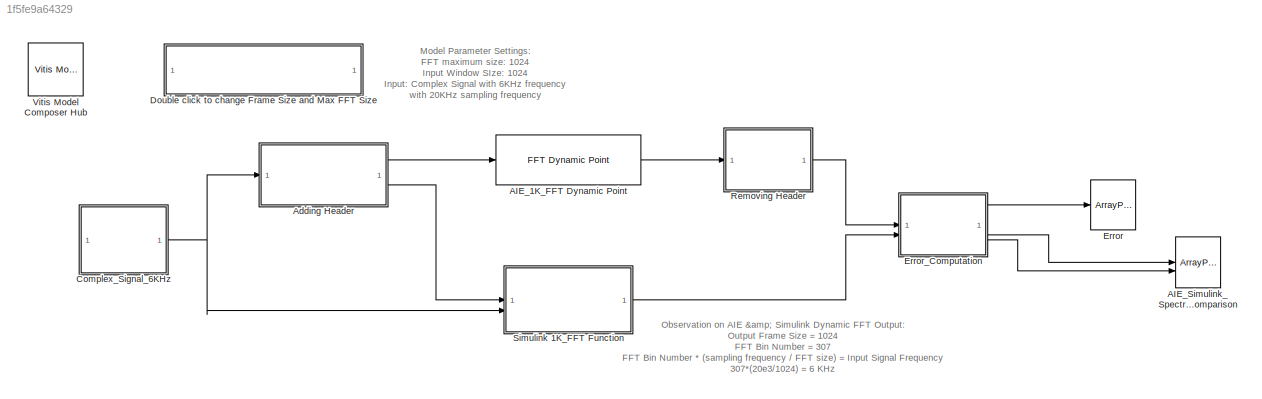
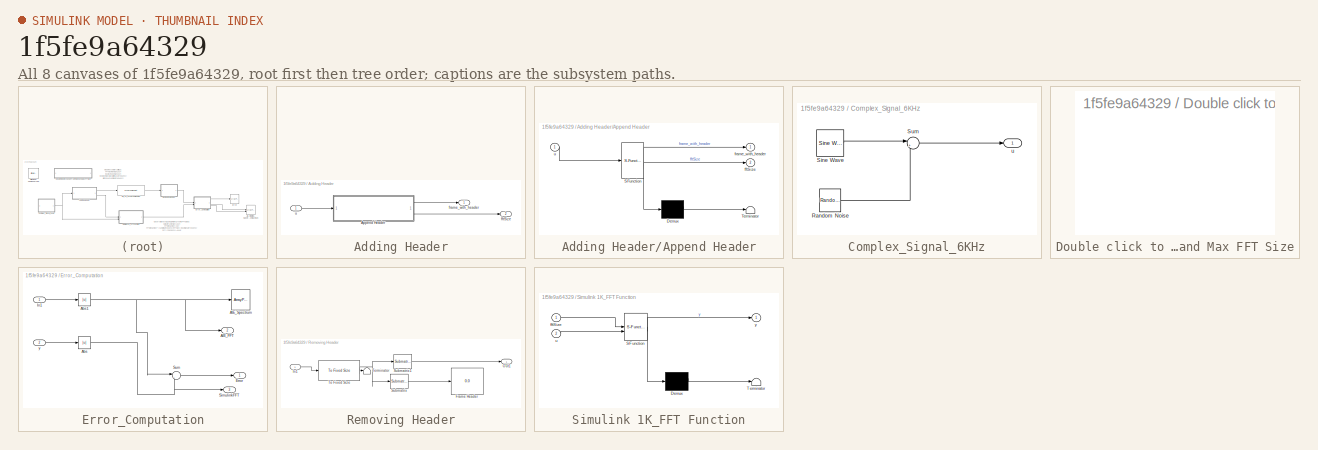
[diagram: thumbnail index - all 8 canvases of the model, root first then tree order]
MODEL slx_1f5fe9a64329
KIND model
CONFIG AbsTol = auto
CONFIG EnableMultiTasking = off
CONFIG FixedStep = auto
CONFIG MaxStep = auto
CONFIG MinStep = auto
CONFIG RelTol = 1e-3
CONFIG SampleTimeConstraint = Unconstrained
CONFIG SolverName = VariableStepAuto
CONFIG StartTime = 0.0
CONFIG StopTime = 2
WORKSPACE source: mxarray member
WORKSPACE frame_size = 1024
WORKSPACE max_fft_size = 1024
BLOCK [Reference] AIE_1K_FFT Dynamic Point  REF=aieDSP/FFT Dynamic Point
  SourceBlock = aieDSP/FFT Dynamic Point
  SourceType = FFT Dynamic Point
BLOCK [ArrayPlot] AIE_Simulink_SpectrumComparison
  AxesScaling = Manual
  GraphicalSettings = {"Style":{"BackgroundColor":[0.15686274509803921,0.15686274509803921,0.15686274509803921],"AxesColor":[0,0,0],"LabelsColor":[0.68627450980392157,0.68627450980392157,0.68627450980392157],"LineStyle":["-","-"],"LineColor":[[1,1,0.066666666666666666],[0.074509803921568626,0.62352941176470589,1]],"LineWidth":[1.5,1.5],"Marker":[".","o"],"FontSize":"small"},"Cursors":{"Enabled":false,"XLocation":[2,8],...<+384ch>
  NumInputPorts = 2
  PlotType = Line
  ShowLegend = on
  WasSavedAsWebScope = on
  WindowPosition = [83.000000,185.000000,845.000000,423.000000,]
  YLimits = [-100,1100]
BLOCK [SubSystem] Adding Header
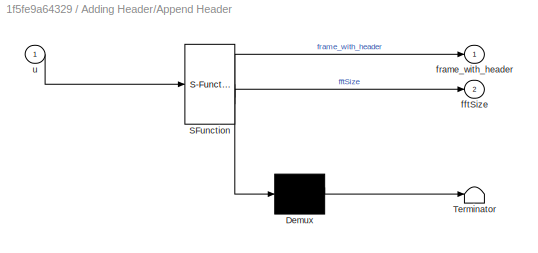
BLOCK [SubSystem] Adding Header/Append Header
  ErrorFcn = Stateflow.Translate.translate
  PermitHierarchicalResolution = ExplicitOnly
  SFBlockType = MATLAB Function
  TreatAsAtomicUnit = on
BLOCK [Demux] Adding Header/Append Header/ Demux 
  Outputs = 1
BLOCK [S-Function] Adding Header/Append Header/ SFunction 
  EnableBusSupport = off
  FunctionName = sf_sfun
  Parameters = fftSizeInput
  PortCounts = [1 3]
  SFcnIsStateOwnerBlock = off
  SFunctionDeploymentMode = off
  Tag = Stateflow S-Function 1
BLOCK [Terminator] Adding Header/Append Header/ Terminator 
BLOCK [Outport] Adding Header/Append Header/fftSize
  Port = 2
BLOCK [Outport] Adding Header/Append Header/frame_with_header
BLOCK [Inport] Adding Header/Append Header/u
BLOCK [Outport] Adding Header/fftSize
  Port = 2
BLOCK [Outport] Adding Header/frame_with_header
BLOCK [Inport] Adding Header/u
BLOCK [SubSystem] Complex_Signal_6KHz
BLOCK [Reference] Complex_Signal_6KHz/Random Noise  REF=dspobslib/Random
Source
  SourceBlock = dspobslib/Random\nSource
  SourceType = Random Source Obsolete
  UserDataPersistent = on
BLOCK [Reference] Complex_Signal_6KHz/Sine Wave  REF=dspsrcs4/Sine Wave
  SourceBlock = dspsrcs4/Sine Wave
  SourceType = Sine Wave
BLOCK [Sum] Complex_Signal_6KHz/Sum
  Inputs = |++
BLOCK [Outport] Complex_Signal_6KHz/u
BLOCK [SubSystem] Double click to change Frame Size and Max FFT Size
BLOCK [ArrayPlot] Error
  AxesScaling = Manual
  GraphicalSettings = {"Style":{"BackgroundColor":[0.15686274509803921,0.15686274509803921,0.15686274509803921],"AxesColor":[0,0,0],"LabelsColor":[0.68627450980392157,0.68627450980392157,0.68627450980392157],"LineStyle":["-"],"LineColor":[1,1,0.066666666666666666],"LineWidth":1.5,"Marker":["."],"FontSize":"small"},"Cursors":{"Enabled":false,"XLocation":[2,8],"SnapToData":false,"LockSpacing":false,"ShowText":false},"Pea...<+324ch>
  PlotType = Line
  ShowLegend = on
  WasSavedAsWebScope = on
  WindowPosition = [185.000000,41.000000,845.000000,423.000000,]
  YLimits = [-5,5]
BLOCK [SubSystem] Error_Computation
BLOCK [Outport] Error_Computation/AIE_FFT
  Port = 2
BLOCK [ArrayPlot] Error_Computation/AIE_Spectrum
  GraphicalSettings = {"Style":{"BackgroundColor":[0.15686274509803921,0.15686274509803921,0.15686274509803921],"AxesColor":[0,0,0],"LabelsColor":[0.68627450980392157,0.68627450980392157,0.68627450980392157],"LineStyle":["-"],"LineColor":[1,1,0.066666666666666666],"LineWidth":1.5,"Marker":["."],"FontSize":"small"},"Cursors":{"Enabled":false,"XLocation":[2,8],"SnapToData":false,"LockSpacing":false,"ShowText":false},"Pea...<+324ch>
  PlotType = Line
  ShowLegend = on
  WasSavedAsWebScope = on
  WindowPosition = [477.000000,81.000000,800.000000,500.000000,]
  XDataMode = Custom
  YLimits = [-119.6267,1076.9574]
BLOCK [Abs] Error_Computation/Abs
  SaturateOnIntegerOverflow = off
BLOCK [Abs] Error_Computation/Abs1
  SaturateOnIntegerOverflow = off
BLOCK [Outport] Error_Computation/Error
BLOCK [Inport] Error_Computation/In1
BLOCK [Outport] Error_Computation/SimulinkFFT
  Port = 3
BLOCK [Sum] Error_Computation/Sum
  AccumDataTypeStr = int32
  Inputs = |+-
BLOCK [Inport] Error_Computation/y
  Port = 2
BLOCK [SubSystem] Removing Header
BLOCK [Display] Removing Header/Frame Header
  Decimation = 1
BLOCK [Inport] Removing Header/In1
BLOCK [Outport] Removing Header/Out1
BLOCK [Reference] Removing Header/Submatrix  REF=matrix_library/Submatrix
  SourceBlock = matrix_library/Submatrix
  SourceType = Submatrix
BLOCK [Reference] Removing Header/Submatrix1  REF=matrix_library/Submatrix
  SourceBlock = matrix_library/Submatrix
  SourceType = Submatrix
BLOCK [Terminator] Removing Header/Terminator
BLOCK [Reference] Removing Header/To Fixed Size  REF=aieUtilities/To Fixed Size
  SourceBlock = aieUtilities/To Fixed Size
  SourceType = To Fixed Size
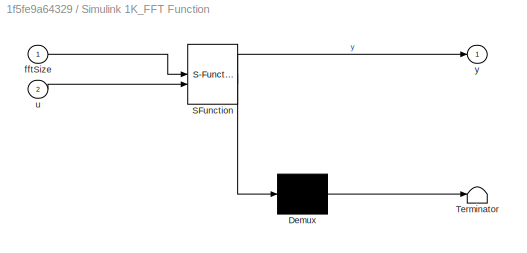
BLOCK [SubSystem] Simulink 1K_FFT Function
  ErrorFcn = Stateflow.Translate.translate
  PermitHierarchicalResolution = ExplicitOnly
  SFBlockType = MATLAB Function
  TreatAsAtomicUnit = on
BLOCK [Demux] Simulink 1K_FFT Function/ Demux 
  Outputs = 1
BLOCK [S-Function] Simulink 1K_FFT Function/ SFunction 
  EnableBusSupport = off
  FunctionName = sf_sfun
  Parameters = frame_size,max_fft_size
  PortCounts = [2 2]
  SFcnIsStateOwnerBlock = off
  SFunctionDeploymentMode = off
  Tag = Stateflow S-Function 2
BLOCK [Terminator] Simulink 1K_FFT Function/ Terminator 
BLOCK [Inport] Simulink 1K_FFT Function/fftSize
BLOCK [Inport] Simulink 1K_FFT Function/u
  Port = 2
BLOCK [Outport] Simulink 1K_FFT Function/y
BLOCK [Reference] Vitis Model Composer Hub  REF=vmcUtilities/Vitis Model Composer Hub
  SourceBlock = vmcUtilities/Vitis Model Composer Hub
  SourceType = VMC Hub
  Tag = genX
  UserDataPersistent = on
ANNOTATION (root): Model Parameter Settings: FFT maximum size: 1024 Input Window SIze: 1024 Input: Complex Signal with 6KHz frequency with 20KHz sampling frequency
ANNOTATION (root): Observation on AIE & Simulink Dynamic FFT Output: Output Frame Size = 1024 FFT Bin Number = 307 FFT Bin Number * (sampling frequency / FFT size) = Input Signal Frequency 307*(20e3/1024) = 6 KHz
LINE AIE_1K_FFT Dynamic Point:1 -> Removing Header:1
LINE Adding Header/Append Header:1 -> Adding Header/frame_with_header:1
LINE Adding Header/Append Header:2 -> Adding Header/fftSize:1
LINE Adding Header/u:1 -> Adding Header/Append Header:1
LINE Adding Header:1 -> AIE_1K_FFT Dynamic Point:1
LINE Adding Header:2 -> Simulink 1K_FFT Function:1
LINE Complex_Signal_6KHz/Random Noise:1 -> Complex_Signal_6KHz/Sum:2
LINE Complex_Signal_6KHz/Sine Wave:1 -> Complex_Signal_6KHz/Sum:1
LINE Complex_Signal_6KHz/Sum:1 -> Complex_Signal_6KHz/u:1
NET Complex_Signal_6KHz:1 -> Adding Header:1, Simulink 1K_FFT Function:2
NET Error_Computation/Abs1:1 -> Error_Computation/AIE_FFT:1, Error_Computation/AIE_Spectrum:1, Error_Computation/Sum:1
NET Error_Computation/Abs:1 -> Error_Computation/SimulinkFFT:1, Error_Computation/Sum:2
LINE Error_Computation/In1:1 -> Error_Computation/Abs1:1
LINE Error_Computation/Sum:1 -> Error_Computation/Error:1
LINE Error_Computation/y:1 -> Error_Computation/Abs:1
LINE Error_Computation:1 -> Error:1
LINE Error_Computation:2 -> AIE_Simulink_SpectrumComparison:1
LINE Error_Computation:3 -> AIE_Simulink_SpectrumComparison:2
LINE Removing Header/In1:1 -> Removing Header/To Fixed Size:1
LINE Removing Header/Submatrix1:1 -> Removing Header/Out1:1
LINE Removing Header/Submatrix:1 -> Removing Header/Frame Header:1
NET Removing Header/To Fixed Size:1 -> Removing Header/Submatrix1:1, Removing Header/Submatrix:1
LINE Removing Header/To Fixed Size:2 -> Removing Header/Terminator:1
LINE Removing Header:1 -> Error_Computation:1
LINE Simulink 1K_FFT Function:1 -> Error_Computation:2
note: NET lines group one-source signal fan-out (src -> all destinations, sorted); 1:1 wires keep LINE
CHART Adding Header/Append Header states=1 transitions=1
  STATE_LABEL 'eML_blk_kernel()'
  STATE_LABEL "SCRIPT:\nfunction [frame_with_header, fftSize] = fcn(u, fftSizeInput)\n\npersistent inputFrameNum\n\nif isempty(inputFrameNum)\n    inputFrameNum = 1;    \nend\n\nheaderValueSize = 4; % for int32 and Single data types.  \nheaderValue = zeros(headerValueSize,1);\n\n% fftSize must be an array of power of twos that are smaller than input size\n\nif any( fftSizeInput > length(u))\n    error('fft sizes should be smal...<+776ch>"
CHART Simulink 1K_FFT Function states=1 transitions=1
  STATE_LABEL 'eML_blk_kernel()'
  STATE_LABEL 'SCRIPT:\nfunction y = fcn(fftSize, u, frame_size, max_fft_size)\n\nout = complex(zeros(frame_size,1));\n\nfor i = 0:frame_size/max_fft_size-1\n    frame_fft = fft(double(u(i*max_fft_size+1:(i+1)*max_fft_size)),fftSize);\n    out(i*max_fft_size+1:(i+1)*max_fft_size) = [frame_fft; zeros(max_fft_size - fftSize,1)];\nend\n\ny = single(out(1:frame_size));'
CHART  states=0 transitions=0
CHART  states=0 transitions=0
